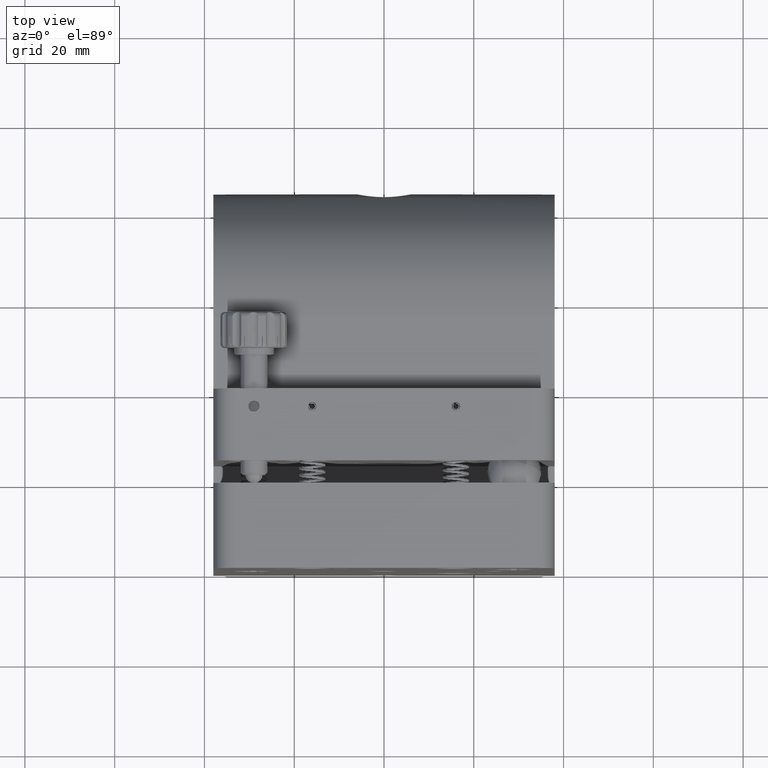
[diagram: clean part render]
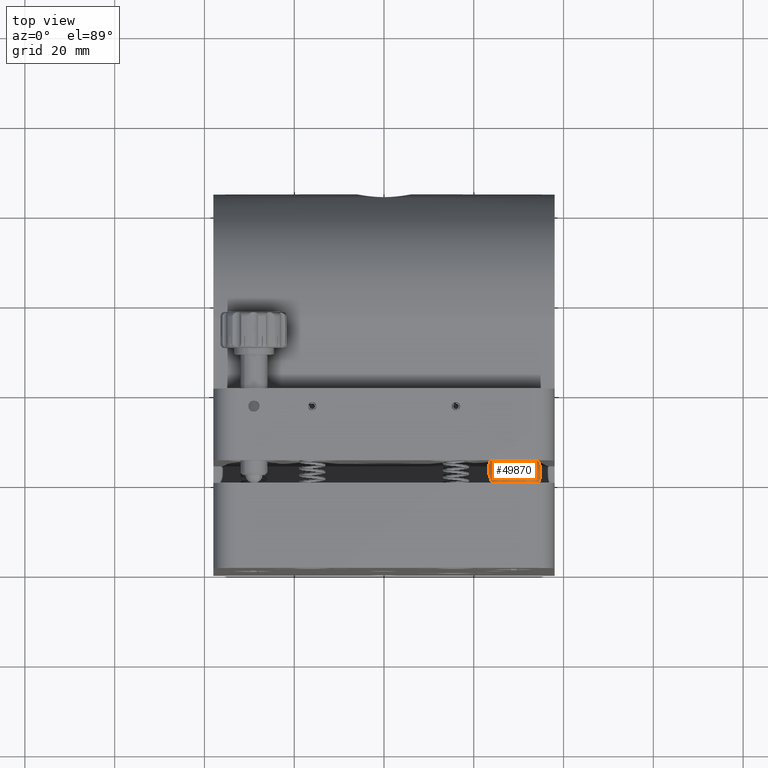
[diagram: same view with one face highlighted and labeled with its STEP entity id]
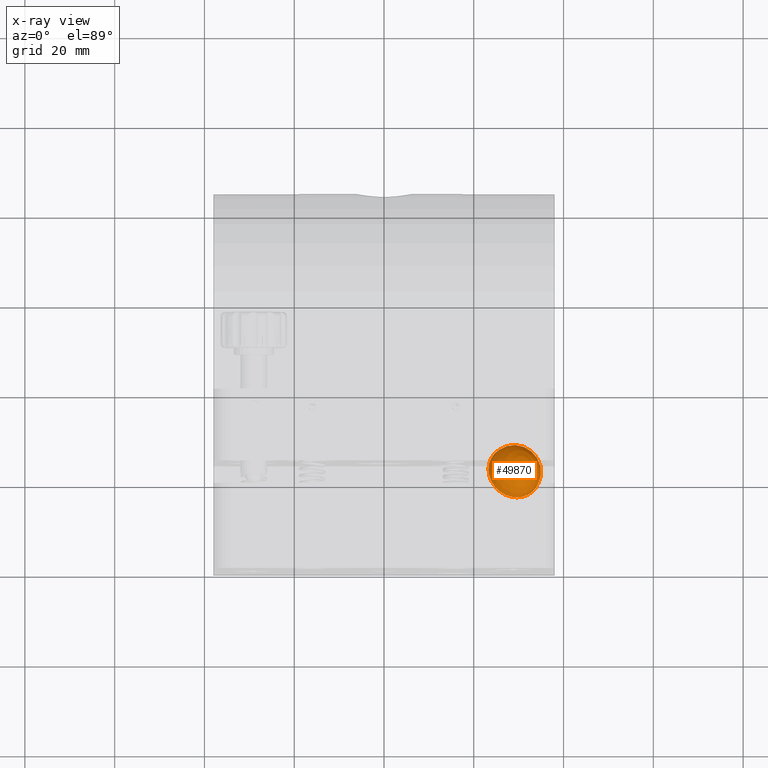
[diagram: x-ray of the same camera — body ghosted, the highlighted face saturated]
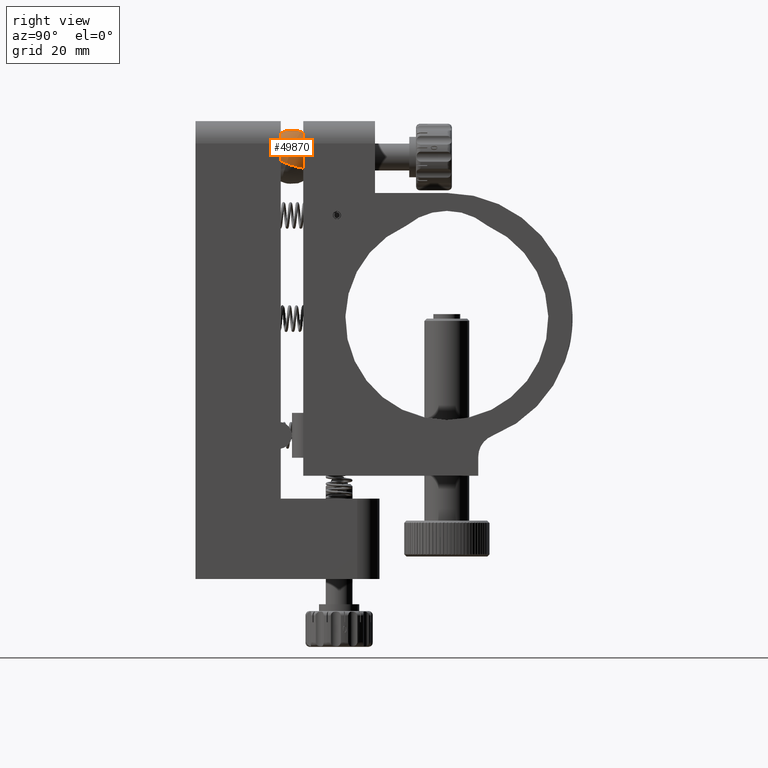
[diagram: same view with one face highlighted and labeled with its STEP entity id]
A machine part, top view. The second image highlights one B-rep face of the part: STEP entity #49870.
The next image is the same camera in x-ray: the body ghosted, the highlighted face saturated — about 0% of this face is hidden behind the body in this view.
A second angle (right view) of the same face is appended — the face is thin or edge-on in the first view.
In plain terms, the highlighted spherical surface has radius 6 mm.
Its self-contained STEP definition (entity closure, byte-faithful):
#1327 = CARTESIAN_POINT ( 'NONE',  ( 29.00000000000000700, 21.50000000000000000, 36.00000000000000000 ) ) ;
#3845 = CARTESIAN_POINT ( 'NONE',  ( 29.66253486040605500, 27.07096239241522200, 33.87269523080449600 ) ) ;
#11569 = CARTESIAN_POINT ( 'NONE',  ( 28.33746513959395900, 15.92903760758477500, 38.12730476919549700 ) ) ;
#11971 = EDGE_LOOP ( 'NONE', ( #36567, #22479 ) ) ;
#15255 = SPHERICAL_SURFACE ( 'NONE', #39967, 6.000000000000000000 ) ;
#16613 = DIRECTION ( 'NONE',  ( -0.2973780377023407300, -0.3095241804356381200, -0.9031949315723332200 ) ) ;
#17217 = CIRCLE ( 'NONE', #18133, 6.000000000000000000 ) ;
#18133 = AXIS2_PLACEMENT_3D ( 'NONE', #42677, #34650, #25610 ) ;
#22010 = FACE_OUTER_BOUND ( 'NONE', #11971, .T. ) ;
#22479 = ORIENTED_EDGE ( 'NONE', *, *, #33664, .T. ) ;
#22826 = AXIS2_PLACEMENT_3D ( 'NONE', #51662, #16613, #38745 ) ;
#25610 = DIRECTION ( 'NONE',  ( 0.0000000000000000000, -0.9459917753116130500, 0.3241906245448541400 ) ) ;
#27250 = CIRCLE ( 'NONE', #22826, 6.000000000000000000 ) ;
#33585 = EDGE_CURVE ( 'NONE', #37138, #55638, #27250, .T. ) ;
#33664 = EDGE_CURVE ( 'NONE', #37138, #55638, #17217, .T. ) ;
#34650 = DIRECTION ( 'NONE',  ( 0.2973780377023408400, 0.3095241804356380600, 0.9031949315723332200 ) ) ;
#35692 = DIRECTION ( 'NONE',  ( -0.2973780377023407800, -0.3095241804356381200, -0.9031949315723333300 ) ) ;
#36567 = ORIENTED_EDGE ( 'NONE', *, *, #33585, .F. ) ;
#37138 = VERTEX_POINT ( 'NONE', #11569 ) ;
#38745 = DIRECTION ( 'NONE',  ( 0.0000000000000000000, 0.9459917753116130500, -0.3241906245448541400 ) ) ;
#39967 = AXIS2_PLACEMENT_3D ( 'NONE', #1327, #35692, #48393 ) ;
#42677 = CARTESIAN_POINT ( 'NONE',  ( 29.00000000000000700, 21.50000000000000000, 36.00000000000000000 ) ) ;
#48393 = DIRECTION ( 'NONE',  ( 0.9483528770052627200, -0.2051686409611526200, -0.2419352174487926800 ) ) ;
#49870 = ADVANCED_FACE ( 'NONE', ( #22010 ), #15255, .T. ) ;
#51662 = CARTESIAN_POINT ( 'NONE',  ( 29.00000000000000700, 21.50000000000000000, 36.00000000000000000 ) ) ;
#55638 = VERTEX_POINT ( 'NONE', #3845 ) ;